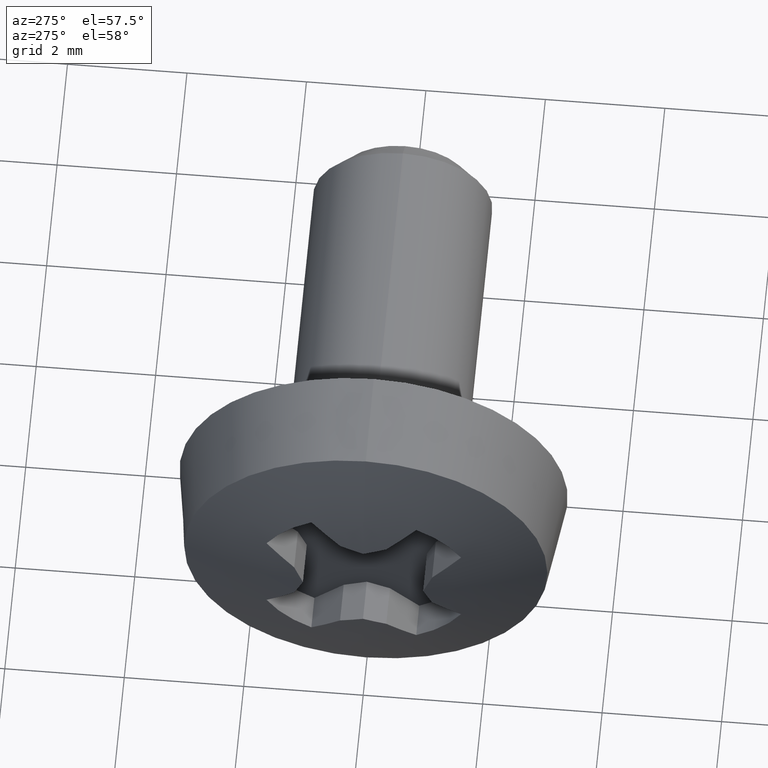
[diagram: clean part render]
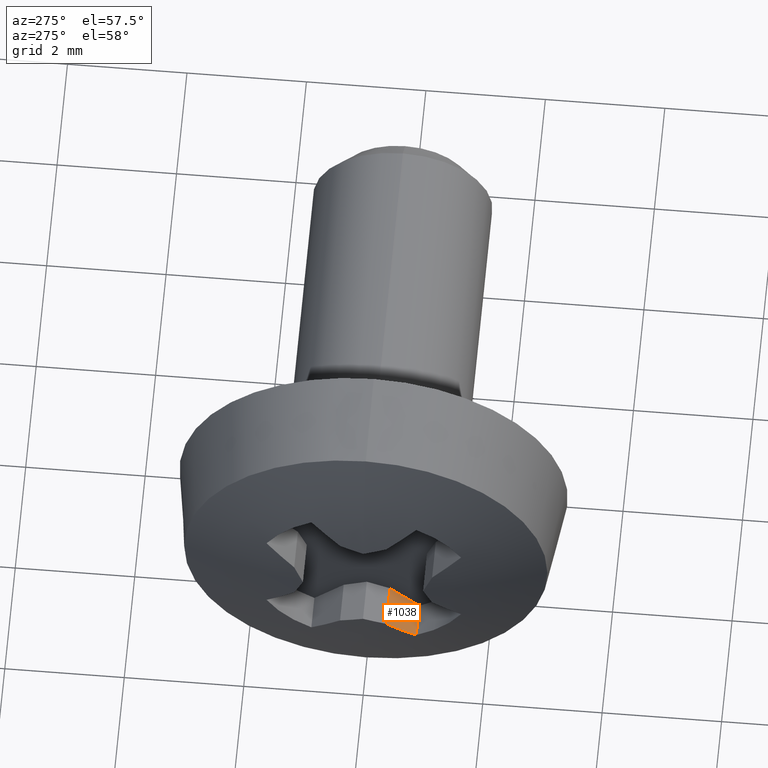
[diagram: same view with one face highlighted and labeled with its STEP entity id]
A machine part, auxiliary view. The second image highlights one B-rep face of the part: STEP entity #1038.
In plain terms, the highlighted planar face has unit normal (0, -0.6947, 0.7193).
Its self-contained STEP definition (entity closure, byte-faithful):
#11 = VERTEX_POINT ( 'NONE', #90 ) ;
#26 = LINE ( 'NONE', #989, #468 ) ;
#56 = LINE ( 'NONE', #326, #754 ) ;
#82 = EDGE_CURVE ( 'NONE', #11, #1168, #831, .T. ) ;
#90 = CARTESIAN_POINT ( 'NONE',  ( -1.300000000000000300, -0.8778660937063521600, -1.628450527808812200 ) ) ;
#222 = CARTESIAN_POINT ( 'NONE',  ( -1.300000000000000300, -0.3868178104665048700, -1.154250712796087500 ) ) ;
#326 = CARTESIAN_POINT ( 'NONE',  ( -1.300000000000000300, -0.8778660937063521600, -1.628450527808812200 ) ) ;
#341 = VECTOR ( 'NONE', #551, 1000.000000000000100 ) ;
#420 = AXIS2_PLACEMENT_3D ( 'NONE', #222, #799, #714 ) ;
#454 = DIRECTION ( 'NONE',  ( -1.000000000000000000, 0.0000000000000000000, 0.0000000000000000000 ) ) ;
#458 = B_SPLINE_CURVE_WITH_KNOTS ( 'NONE', 3,
 ( #621, #794, #506, #979 ),
 .UNSPECIFIED., .F., .F.,
 ( 4, 4 ),
 ( 2.949178166988731400E-007, 0.0006940255208822763500 ),
 .UNSPECIFIED. ) ;
#468 = VECTOR ( 'NONE', #477, 1000.000000000000000 ) ;
#476 = EDGE_CURVE ( 'NONE', #11, #818, #56, .T. ) ;
#477 = DIRECTION ( 'NONE',  ( -1.000000000000000000, 0.0000000000000000000, 0.0000000000000000000 ) ) ;
#506 = CARTESIAN_POINT ( 'NONE',  ( -1.976094856721939900, -0.5517917443283809600, -1.313564188862171400 ) ) ;
#551 = DIRECTION ( 'NONE',  ( -0.0000000000000000000, 0.7193398003388566900, 0.6946583704587844200 ) ) ;
#586 = CARTESIAN_POINT ( 'NONE',  ( -1.883802146954359800, -0.8778660937063521600, -1.628450527808812200 ) ) ;
#614 = CARTESIAN_POINT ( 'NONE',  ( -1.300000000000000300, -0.3868178104665048700, -1.154250712796087500 ) ) ;
#621 = CARTESIAN_POINT ( 'NONE',  ( -1.883802146954359800, -0.8778660937063521600, -1.628450527808812200 ) ) ;
#703 = CARTESIAN_POINT ( 'NONE',  ( -2.007366982563981900, -0.3868178104665048700, -1.154250712796087500 ) ) ;
#714 = DIRECTION ( 'NONE',  ( 0.0000000000000000000, -0.7193398003388566900, -0.6946583704587844200 ) ) ;
#754 = VECTOR ( 'NONE', #454, 1000.000000000000000 ) ;
#785 = PLANE ( 'NONE',  #420 ) ;
#792 = EDGE_CURVE ( 'NONE', #1168, #880, #26, .T. ) ;
#794 = CARTESIAN_POINT ( 'NONE',  ( -1.934908465970951900, -0.7154747512150858600, -1.471631031239238000 ) ) ;
#799 = DIRECTION ( 'NONE',  ( 0.0000000000000000000, -0.6946583704587844200, 0.7193398003388566900 ) ) ;
#818 = VERTEX_POINT ( 'NONE', #586 ) ;
#831 = LINE ( 'NONE', #833, #341 ) ;
#833 = CARTESIAN_POINT ( 'NONE',  ( -1.300000000000000300, -0.3868178104665048700, -1.154250712796087500 ) ) ;
#875 = ORIENTED_EDGE ( 'NONE', *, *, #476, .F. ) ;
#880 = VERTEX_POINT ( 'NONE', #703 ) ;
#979 = CARTESIAN_POINT ( 'NONE',  ( -2.007366982563981900, -0.3868178104665048700, -1.154250712796087500 ) ) ;
#989 = CARTESIAN_POINT ( 'NONE',  ( -1.300000000000000300, -0.3868178104665048700, -1.154250712796087500 ) ) ;
#1021 = ORIENTED_EDGE ( 'NONE', *, *, #792, .T. ) ;
#1038 = ADVANCED_FACE ( 'NONE', ( #1176 ), #785, .T. ) ;
#1076 = ORIENTED_EDGE ( 'NONE', *, *, #82, .T. ) ;
#1101 = EDGE_CURVE ( 'NONE', #818, #880, #458, .T. ) ;
#1139 = EDGE_LOOP ( 'NONE', ( #875, #1076, #1021, #1174 ) ) ;
#1168 = VERTEX_POINT ( 'NONE', #614 ) ;
#1174 = ORIENTED_EDGE ( 'NONE', *, *, #1101, .F. ) ;
#1176 = FACE_OUTER_BOUND ( 'NONE', #1139, .T. ) ;